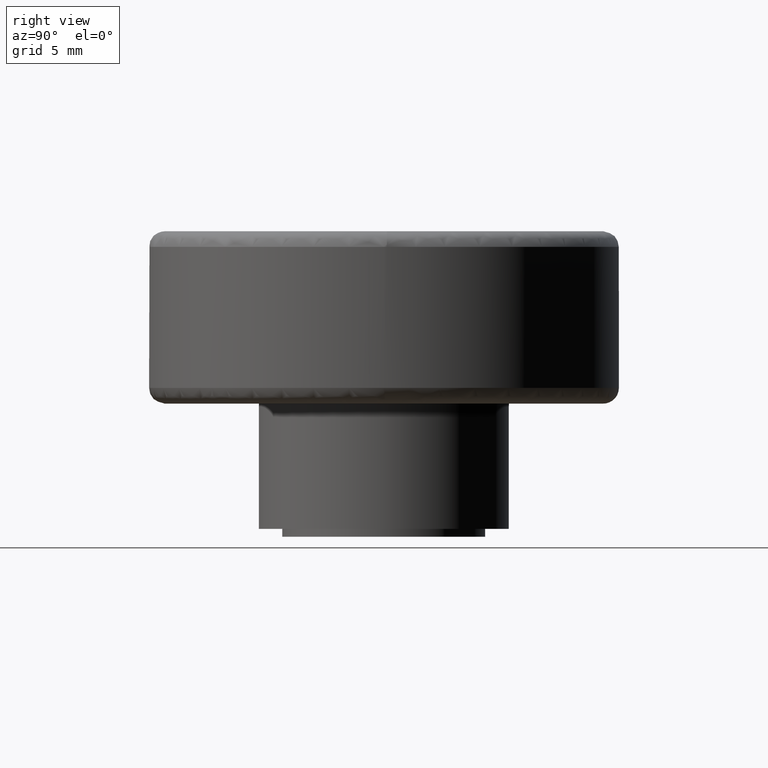
[diagram: clean part render]
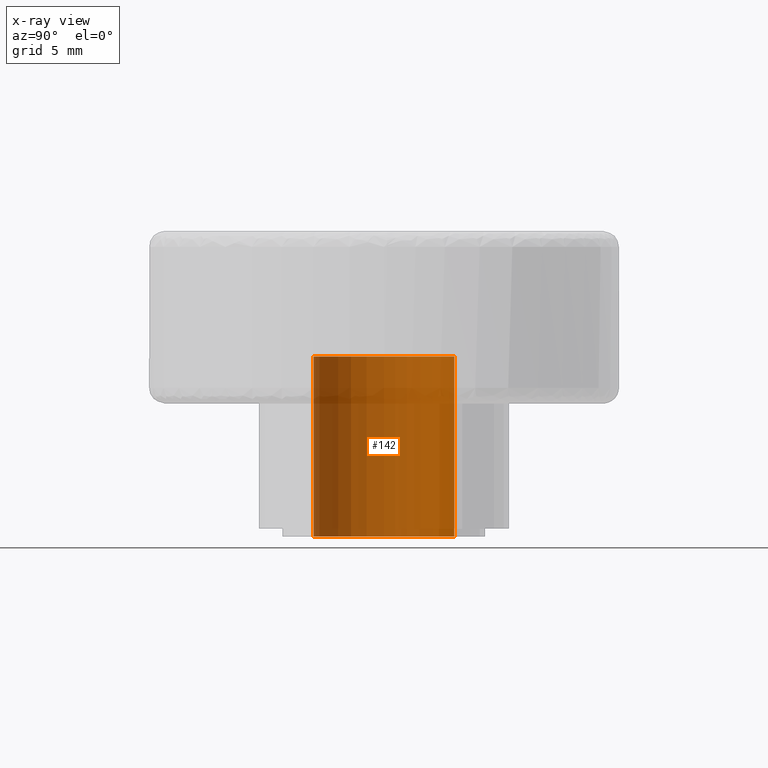
[diagram: x-ray — body ghosted, one internal face saturated and labeled with its STEP entity id]
A machine part, right view, then the same camera in x-ray: the body is ghosted and one INTERNAL B-rep face — a face not visible from any outside direction — is saturated and labeled: STEP entity #142.
In plain terms, the highlighted face is a freeform B-spline surface patch.
Its self-contained STEP definition (entity closure, byte-faithful):
#44=CARTESIAN_POINT('',(-0.353065930775305,-4.486128001799074,11.787500000000000));
#45=CARTESIAN_POINT('',(-4.839193932574379,-4.133062071023770,11.787500000000000));
#46=CARTESIAN_POINT('',(-4.486128001799074,0.353065930775305,11.787500000000000));
#47=CARTESIAN_POINT('',(-4.133062071023770,4.839193932574379,11.787500000000000));
#48=CARTESIAN_POINT('',(0.353065930775305,4.486128001799074,11.787500000000000));
#49=CARTESIAN_POINT('',(-0.353065930775305,-4.486128001799074,-0.294687500000000));
#50=CARTESIAN_POINT('',(-4.839193932574379,-4.133062071023770,-0.294687500000000));
#51=CARTESIAN_POINT('',(-4.486128001799074,0.353065930775305,-0.294687500000000));
#52=CARTESIAN_POINT('',(-4.133062071023770,4.839193932574379,-0.294687500000000));
#53=CARTESIAN_POINT('',(0.353065930775305,4.486128001799074,-0.294687500000000));
#61=(BOUNDED_SURFACE()B_SPLINE_SURFACE(2,1,((#44,#49),(#45,#50),(#46,#51),(#47,#52),(#48,#53)),.UNSPECIFIED.,.F.,.F.,.U.)B_SPLINE_SURFACE_WITH_KNOTS((3,2,3),(2,2),(0.0,7.455844122715707,14.911688245431410),(0.0,12.082187500000000),.UNSPECIFIED.)GEOMETRIC_REPRESENTATION_ITEM()RATIONAL_B_SPLINE_SURFACE(((1.0,1.0),(0.707106781186548,0.707106781186548),(1.0,1.0),(0.707106781186548,0.707106781186548),(1.0,1.0)))REPRESENTATION_ITEM('')SURFACE());
#62=CARTESIAN_POINT('',(-4.500000000000000,0.0,0.0));
#63=VERTEX_POINT('',#62);
#64=CARTESIAN_POINT('',(-0.353065930799223,-4.486128001797193,-6.383782E-016));
#65=VERTEX_POINT('',#64);
#66=CARTESIAN_POINT('',(-4.500000000000000,0.0,0.0));
#67=CARTESIAN_POINT('',(-4.500000000000002,-4.159757212417436,0.0));
#68=CARTESIAN_POINT('',(-0.353065930799223,-4.486128001797193,-6.383782E-016));
#76=(BOUNDED_CURVE()B_SPLINE_CURVE(2,(#66,#67,#68),.UNSPECIFIED.,.F.,.U.)B_SPLINE_CURVE_WITH_KNOTS((3,3),(0.0,0.236331300630939),.UNSPECIFIED.)CURVE()GEOMETRIC_REPRESENTATION_ITEM()RATIONAL_B_SPLINE_CURVE((1.0,0.723120658607338,0.969723356168000))REPRESENTATION_ITEM(''));
#77=EDGE_CURVE('',#63,#65,#76,.T.);
#78=ORIENTED_EDGE('',*,*,#77,.T.);
#79=CARTESIAN_POINT('',(-0.353065930799224,-4.486128001797193,11.500000000000000));
#80=VERTEX_POINT('',#79);
#81=CARTESIAN_POINT('',(-0.353065930799224,-4.486128001797193,11.500000000000000));
#82=CARTESIAN_POINT('',(-0.353065930799223,-4.486128001797193,-6.383782E-016));
#83=QUASI_UNIFORM_CURVE('',1,(#81,#82),.UNSPECIFIED.,.F.,.U.);
#84=EDGE_CURVE('',#80,#65,#83,.T.);
#85=ORIENTED_EDGE('',*,*,#84,.F.);
#86=CARTESIAN_POINT('',(-4.500000000000000,0.0,11.500000000000000));
#87=VERTEX_POINT('',#86);
#88=CARTESIAN_POINT('',(-4.500000000000000,0.0,11.500000000000000));
#89=CARTESIAN_POINT('',(-4.499999999999999,-4.159757212417433,11.500000000000002));
#90=CARTESIAN_POINT('',(-0.353065930799224,-4.486128001797193,11.499999999999998));
#98=(BOUNDED_CURVE()B_SPLINE_CURVE(2,(#88,#89,#90),.UNSPECIFIED.,.F.,.U.)B_SPLINE_CURVE_WITH_KNOTS((3,3),(0.0,0.236331300630939),.UNSPECIFIED.)CURVE()GEOMETRIC_REPRESENTATION_ITEM()RATIONAL_B_SPLINE_CURVE((1.0,0.723120658607339,0.969723356168000))REPRESENTATION_ITEM(''));
#99=EDGE_CURVE('',#87,#80,#98,.T.);
#100=ORIENTED_EDGE('',*,*,#99,.F.);
#101=CARTESIAN_POINT('',(0.353065930799223,4.486128001797193,11.500000000000000));
#102=VERTEX_POINT('',#101);
#103=CARTESIAN_POINT('',(0.353065930799222,4.486128001797193,11.500000000000004));
#104=CARTESIAN_POINT('',(0.176805481558544,4.500000000000000,11.500000000000004));
#105=CARTESIAN_POINT('',(0.0,4.500000000000000,11.500000000000000));
#106=CARTESIAN_POINT('',(-4.500000000000000,4.500000000000000,11.500000000000002));
#107=CARTESIAN_POINT('',(-4.500000000000000,0.0,11.500000000000000));
#115=(BOUNDED_CURVE()B_SPLINE_CURVE(2,(#103,#104,#105,#106,#107),.UNSPECIFIED.,.F.,.U.)B_SPLINE_CURVE_WITH_KNOTS((3,2,3),(0.736331300630939,0.750000000000000,1.0),.UNSPECIFIED.)CURVE()GEOMETRIC_REPRESENTATION_ITEM()RATIONAL_B_SPLINE_CURVE((0.969723356168001,0.983986122579209,1.0,0.707106781186547,1.0))REPRESENTATION_ITEM(''));
#116=EDGE_CURVE('',#102,#87,#115,.T.);
#117=ORIENTED_EDGE('',*,*,#116,.F.);
#118=CARTESIAN_POINT('',(0.353065930799224,4.486128001797193,-6.383782E-016));
#119=VERTEX_POINT('',#118);
#120=CARTESIAN_POINT('',(0.353065930799223,4.486128001797193,11.500000000000000));
#121=CARTESIAN_POINT('',(0.353065930799224,4.486128001797193,-6.383782E-016));
#122=QUASI_UNIFORM_CURVE('',1,(#120,#121),.UNSPECIFIED.,.F.,.U.);
#123=EDGE_CURVE('',#102,#119,#122,.T.);
#124=ORIENTED_EDGE('',*,*,#123,.T.);
#125=CARTESIAN_POINT('',(0.353065930799224,4.486128001797193,-6.383782E-016));
#126=CARTESIAN_POINT('',(0.176805481558545,4.500000000000001,0.0));
#127=CARTESIAN_POINT('',(0.0,4.500000000000000,0.0));
#128=CARTESIAN_POINT('',(-4.500000000000000,4.500000000000000,0.0));
#129=CARTESIAN_POINT('',(-4.500000000000000,0.0,0.0));
#137=(BOUNDED_CURVE()B_SPLINE_CURVE(2,(#125,#126,#127,#128,#129),.UNSPECIFIED.,.F.,.U.)B_SPLINE_CURVE_WITH_KNOTS((3,2,3),(0.736331300630939,0.750000000000000,1.0),.UNSPECIFIED.)CURVE()GEOMETRIC_REPRESENTATION_ITEM()RATIONAL_B_SPLINE_CURVE((0.969723356168000,0.983986122579209,1.0,0.707106781186547,1.0))REPRESENTATION_ITEM(''));
#138=EDGE_CURVE('',#119,#63,#137,.T.);
#139=ORIENTED_EDGE('',*,*,#138,.T.);
#140=EDGE_LOOP('',(#78,#85,#100,#117,#124,#139));
#141=FACE_OUTER_BOUND('',#140,.T.);
#142=ADVANCED_FACE('',(#141),#61,.T.);